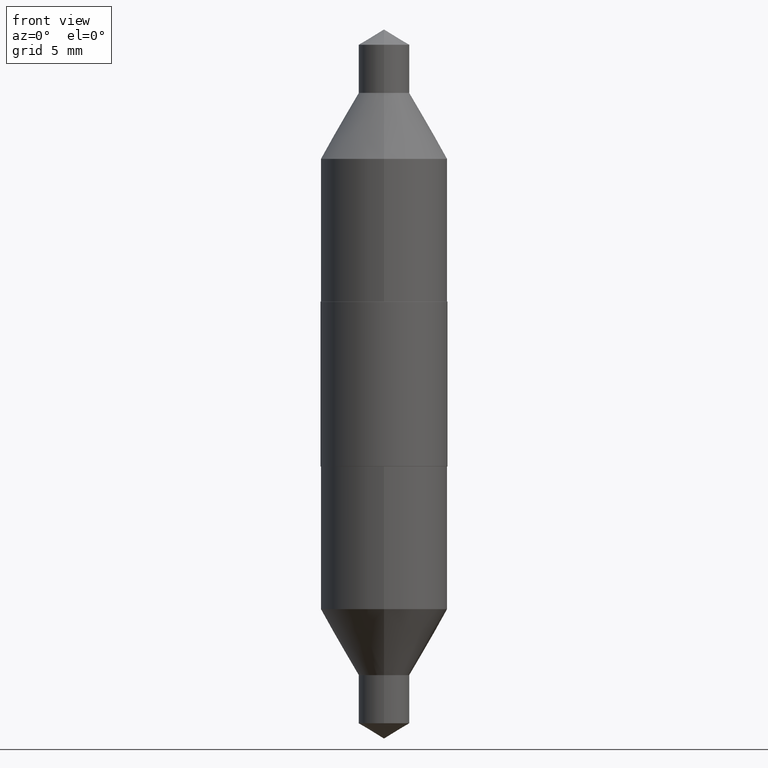
[diagram: clean part render]
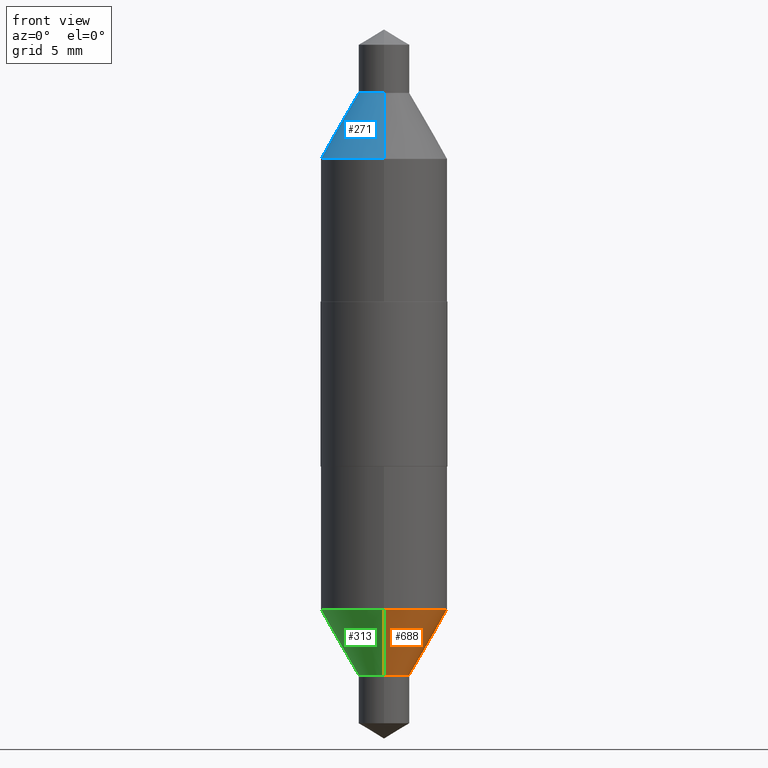
[diagram: same view with three faces highlighted in distinct colors, each labeled with its STEP entity id]
A machine part, front view with three faces highlighted in distinct colors.
Their STEP definitions:

[orange] entity #688 — the highlighted conical surface has half-angle 30 deg.
#19 = CARTESIAN_POINT ( 'NONE',  ( 1.398703375343769621E-15, 0.1968499999999977212, -0.6985447996261132664 ) ) ;
#21 = LINE ( 'NONE', #286, #561 ) ;
#31 = ORIENTED_EDGE ( 'NONE', *, *, #37, .F. ) ;
#37 = EDGE_CURVE ( 'NONE', #640, #199, #227, .T. ) ;
#39 = DIRECTION ( 'NONE',  ( 3.552713678800443343E-15, 0.4999999999999979461, 0.8660254037844399289 ) ) ;
#41 = AXIS2_PLACEMENT_3D ( 'NONE', #71, #172, #63 ) ;
#63 = DIRECTION ( 'NONE',  ( -6.982962677686264344E-15, -1.000000000000000000, 3.469013325287953293E-15 ) ) ;
#71 = CARTESIAN_POINT ( 'NONE',  ( 2.199323621187845058E-29, -3.166302016554974443E-15, -0.9031000000000001249 ) ) ;
#88 = CARTESIAN_POINT ( 'NONE',  ( 5.595524044111006926E-16, 0.07874999999999683642, -0.9031000000000003469 ) ) ;
#127 = FACE_OUTER_BOUND ( 'NONE', #339, .T. ) ;
#172 = DIRECTION ( 'NONE',  ( -2.431283583378843348E-29, 3.511795385274499567E-15, 1.000000000000000000 ) ) ;
#173 = VERTEX_POINT ( 'NONE', #442 ) ;
#199 = VERTEX_POINT ( 'NONE', #19 ) ;
#220 = CARTESIAN_POINT ( 'NONE',  ( -1.374596203102525634E-15, -0.1968500000000026340, -0.6985447996261119341 ) ) ;
#227 = CIRCLE ( 'NONE', #385, 0.1968500000000001915 ) ;
#233 = DIRECTION ( 'NONE',  ( -3.491481338843117578E-15, -0.4999999999999917843, 0.8660254037844432595 ) ) ;
#274 = DIRECTION ( 'NONE',  ( -2.431283583378843348E-29, 3.511795385274499567E-15, 1.000000000000000000 ) ) ;
#286 = CARTESIAN_POINT ( 'NONE',  ( -5.499083108677714548E-16, -0.07875000000000315081, -0.9030999999999999028 ) ) ;
#289 = CARTESIAN_POINT ( 'NONE',  ( 1.701991920624042310E-29, -2.447946007848055488E-15, -0.6985447996261126002 ) ) ;
#309 = ORIENTED_EDGE ( 'NONE', *, *, #373, .T. ) ;
#339 = EDGE_LOOP ( 'NONE', ( #550, #309, #31, #664 ) ) ;
#373 = EDGE_CURVE ( 'NONE', #607, #199, #678, .T. ) ;
#379 = CARTESIAN_POINT ( 'NONE',  ( 2.199323621187845058E-29, -3.166302016554974443E-15, -0.9031000000000001249 ) ) ;
#385 = AXIS2_PLACEMENT_3D ( 'NONE', #289, #495, #452 ) ;
#386 = CONICAL_SURFACE ( 'NONE', #41, 0.07875000000000000056, 0.5235987755982929315 ) ;
#442 = CARTESIAN_POINT ( 'NONE',  ( -5.499083108677714548E-16, -0.07875000000000315081, -0.9030999999999999028 ) ) ;
#452 = DIRECTION ( 'NONE',  ( -6.982962677686265133E-15, -1.000000000000000000, 3.469453890861392812E-15 ) ) ;
#468 = AXIS2_PLACEMENT_3D ( 'NONE', #379, #274, #485 ) ;
#485 = DIRECTION ( 'NONE',  ( -6.982962677686264344E-15, -1.000000000000000000, 3.469013325287953293E-15 ) ) ;
#495 = DIRECTION ( 'NONE',  ( -2.431283583378843348E-29, 3.511795385274499567E-15, 1.000000000000000000 ) ) ;
#550 = ORIENTED_EDGE ( 'NONE', *, *, #614, .T. ) ;
#552 = CIRCLE ( 'NONE', #468, 0.07875000000000000056 ) ;
#561 = VECTOR ( 'NONE', #233, 39.37007874015748143 ) ;
#607 = VERTEX_POINT ( 'NONE', #646 ) ;
#614 = EDGE_CURVE ( 'NONE', #173, #607, #552, .T. ) ;
#640 = VERTEX_POINT ( 'NONE', #220 ) ;
#646 = CARTESIAN_POINT ( 'NONE',  ( 5.595524044111044397E-16, 0.07874999999999683642, -0.9031000000000003469 ) ) ;
#664 = ORIENTED_EDGE ( 'NONE', *, *, #673, .F. ) ;
#673 = EDGE_CURVE ( 'NONE', #173, #640, #21, .T. ) ;
#678 = LINE ( 'NONE', #88, #695 ) ;
#688 = ADVANCED_FACE ( 'NONE', ( #127 ), #386, .T. ) ;
#695 = VECTOR ( 'NONE', #39, 39.37007874015748854 ) ;

[blue] entity #271 — the highlighted conical surface has half-angle 30 deg.
#7 = AXIS2_PLACEMENT_3D ( 'NONE', #563, #497, #79 ) ;
#23 = DIRECTION ( 'NONE',  ( 2.459654028991429845E-29, -3.471167292411791598E-15, -1.000000000000000000 ) ) ;
#62 = LINE ( 'NONE', #156, #432 ) ;
#74 = CARTESIAN_POINT ( 'NONE',  ( -2.217682136543749536E-29, 3.140011577663515512E-15, 0.9031000000000001249 ) ) ;
#79 = DIRECTION ( 'NONE',  ( -6.982962677686264344E-15, -1.000000000000000000, 3.469013325287953293E-15 ) ) ;
#102 = DIRECTION ( 'NONE',  ( -6.982962677686265133E-15, -1.000000000000000000, 3.469453890861392812E-15 ) ) ;
#104 = CARTESIAN_POINT ( 'NONE',  ( -1.374596203102559949E-15, -0.1968499999999977490, 0.6985447996261132664 ) ) ;
#110 = CARTESIAN_POINT ( 'NONE',  ( 1.350489030861320696E-15, 0.1968500000000026340, 0.6985447996261119341 ) ) ;
#136 = EDGE_CURVE ( 'NONE', #236, #593, #142, .T. ) ;
#142 = LINE ( 'NONE', #260, #551 ) ;
#156 = CARTESIAN_POINT ( 'NONE',  ( -5.499083108678155324E-16, -0.07874999999999685030, 0.9031000000000003469 ) ) ;
#163 = ORIENTED_EDGE ( 'NONE', *, *, #553, .F. ) ;
#213 = CIRCLE ( 'NONE', #445, 0.1968500000000001915 ) ;
#222 = EDGE_LOOP ( 'NONE', ( #650, #691, #459, #163 ) ) ;
#236 = VERTEX_POINT ( 'NONE', #350 ) ;
#260 = CARTESIAN_POINT ( 'NONE',  ( 5.402642173244858016E-16, 0.07875000000000313694, 0.9030999999999999028 ) ) ;
#271 = ADVANCED_FACE ( 'NONE', ( #558 ), #669, .T. ) ;
#277 = DIRECTION ( 'NONE',  ( -3.491481338843076163E-15, -0.4999999999999978351, -0.8660254037844399289 ) ) ;
#321 = VERTEX_POINT ( 'NONE', #672 ) ;
#338 = CIRCLE ( 'NONE', #7, 0.07875000000000000056 ) ;
#350 = CARTESIAN_POINT ( 'NONE',  ( 5.402642173244840266E-16, 0.07875000000000313694, 0.9030999999999999028 ) ) ;
#432 = VECTOR ( 'NONE', #277, 39.37007874015748854 ) ;
#445 = AXIS2_PLACEMENT_3D ( 'NONE', #649, #549, #102 ) ;
#458 = DIRECTION ( 'NONE',  ( -6.982962677686264344E-15, -1.000000000000000000, 3.469013325287953293E-15 ) ) ;
#459 = ORIENTED_EDGE ( 'NONE', *, *, #510, .T. ) ;
#469 = DIRECTION ( 'NONE',  ( 3.430248998885751187E-15, 0.4999999999999918954, -0.8660254037844432595 ) ) ;
#497 = DIRECTION ( 'NONE',  ( -2.459654028991429845E-29, 3.471167292411791598E-15, 1.000000000000000000 ) ) ;
#510 = EDGE_CURVE ( 'NONE', #593, #611, #213, .T. ) ;
#549 = DIRECTION ( 'NONE',  ( -2.459654028991429845E-29, 3.471167292411791598E-15, 1.000000000000000000 ) ) ;
#551 = VECTOR ( 'NONE', #469, 39.37007874015748143 ) ;
#553 = EDGE_CURVE ( 'NONE', #321, #611, #62, .T. ) ;
#558 = FACE_OUTER_BOUND ( 'NONE', #222, .T. ) ;
#563 = CARTESIAN_POINT ( 'NONE',  ( -2.217682136543749536E-29, 3.140011577663515512E-15, 0.9031000000000001249 ) ) ;
#593 = VERTEX_POINT ( 'NONE', #110 ) ;
#602 = AXIS2_PLACEMENT_3D ( 'NONE', #74, #23, #458 ) ;
#611 = VERTEX_POINT ( 'NONE', #104 ) ;
#649 = CARTESIAN_POINT ( 'NONE',  ( -1.714547113792967986E-29, 2.429966256632936754E-15, 0.6985447996261126002 ) ) ;
#650 = ORIENTED_EDGE ( 'NONE', *, *, #683, .F. ) ;
#669 = CONICAL_SURFACE ( 'NONE', #602, 0.07875000000000000056, 0.5235987755982929315 ) ;
#672 = CARTESIAN_POINT ( 'NONE',  ( -5.499083108678155324E-16, -0.07874999999999685030, 0.9031000000000003469 ) ) ;
#683 = EDGE_CURVE ( 'NONE', #236, #321, #338, .T. ) ;
#691 = ORIENTED_EDGE ( 'NONE', *, *, #136, .T. ) ;

[green] entity #313 — the highlighted conical surface has half-angle 30 deg.
#8 = ORIENTED_EDGE ( 'NONE', *, *, #673, .T. ) ;
#12 = ORIENTED_EDGE ( 'NONE', *, *, #15, .T. ) ;
#14 = FACE_OUTER_BOUND ( 'NONE', #297, .T. ) ;
#15 = EDGE_CURVE ( 'NONE', #607, #173, #60, .T. ) ;
#19 = CARTESIAN_POINT ( 'NONE',  ( 1.398703375343769621E-15, 0.1968499999999977212, -0.6985447996261132664 ) ) ;
#21 = LINE ( 'NONE', #286, #561 ) ;
#39 = DIRECTION ( 'NONE',  ( 3.552713678800443343E-15, 0.4999999999999979461, 0.8660254037844399289 ) ) ;
#60 = CIRCLE ( 'NONE', #265, 0.07875000000000000056 ) ;
#88 = CARTESIAN_POINT ( 'NONE',  ( 5.595524044111006926E-16, 0.07874999999999683642, -0.9031000000000003469 ) ) ;
#92 = AXIS2_PLACEMENT_3D ( 'NONE', #573, #414, #369 ) ;
#173 = VERTEX_POINT ( 'NONE', #442 ) ;
#199 = VERTEX_POINT ( 'NONE', #19 ) ;
#217 = ORIENTED_EDGE ( 'NONE', *, *, #392, .F. ) ;
#220 = CARTESIAN_POINT ( 'NONE',  ( -1.374596203102525634E-15, -0.1968500000000026340, -0.6985447996261119341 ) ) ;
#226 = CARTESIAN_POINT ( 'NONE',  ( 2.199323621187845058E-29, -3.166302016554974443E-15, -0.9031000000000001249 ) ) ;
#233 = DIRECTION ( 'NONE',  ( -3.491481338843117578E-15, -0.4999999999999917843, 0.8660254037844432595 ) ) ;
#262 = DIRECTION ( 'NONE',  ( -2.431283583378843348E-29, 3.511795385274499567E-15, 1.000000000000000000 ) ) ;
#265 = AXIS2_PLACEMENT_3D ( 'NONE', #537, #262, #478 ) ;
#267 = CONICAL_SURFACE ( 'NONE', #399, 0.07875000000000000056, 0.5235987755982929315 ) ;
#286 = CARTESIAN_POINT ( 'NONE',  ( -5.499083108677714548E-16, -0.07875000000000315081, -0.9030999999999999028 ) ) ;
#297 = EDGE_LOOP ( 'NONE', ( #527, #12, #8, #217 ) ) ;
#313 = ADVANCED_FACE ( 'NONE', ( #14 ), #267, .T. ) ;
#369 = DIRECTION ( 'NONE',  ( -6.982962677686265133E-15, -1.000000000000000000, 3.469453890861392812E-15 ) ) ;
#373 = EDGE_CURVE ( 'NONE', #607, #199, #678, .T. ) ;
#392 = EDGE_CURVE ( 'NONE', #199, #640, #410, .T. ) ;
#399 = AXIS2_PLACEMENT_3D ( 'NONE', #226, #667, #402 ) ;
#402 = DIRECTION ( 'NONE',  ( -6.982962677686264344E-15, -1.000000000000000000, 3.469013325287953293E-15 ) ) ;
#410 = CIRCLE ( 'NONE', #92, 0.1968500000000001915 ) ;
#414 = DIRECTION ( 'NONE',  ( -2.431283583378843348E-29, 3.511795385274499567E-15, 1.000000000000000000 ) ) ;
#442 = CARTESIAN_POINT ( 'NONE',  ( -5.499083108677714548E-16, -0.07875000000000315081, -0.9030999999999999028 ) ) ;
#478 = DIRECTION ( 'NONE',  ( -6.982962677686264344E-15, -1.000000000000000000, 3.469013325287953293E-15 ) ) ;
#527 = ORIENTED_EDGE ( 'NONE', *, *, #373, .F. ) ;
#537 = CARTESIAN_POINT ( 'NONE',  ( 2.199323621187845058E-29, -3.166302016554974443E-15, -0.9031000000000001249 ) ) ;
#561 = VECTOR ( 'NONE', #233, 39.37007874015748143 ) ;
#573 = CARTESIAN_POINT ( 'NONE',  ( 1.701991920624042310E-29, -2.447946007848055488E-15, -0.6985447996261126002 ) ) ;
#607 = VERTEX_POINT ( 'NONE', #646 ) ;
#640 = VERTEX_POINT ( 'NONE', #220 ) ;
#646 = CARTESIAN_POINT ( 'NONE',  ( 5.595524044111044397E-16, 0.07874999999999683642, -0.9031000000000003469 ) ) ;
#667 = DIRECTION ( 'NONE',  ( -2.431283583378843348E-29, 3.511795385274499567E-15, 1.000000000000000000 ) ) ;
#673 = EDGE_CURVE ( 'NONE', #173, #640, #21, .T. ) ;
#678 = LINE ( 'NONE', #88, #695 ) ;
#695 = VECTOR ( 'NONE', #39, 39.37007874015748854 ) ;